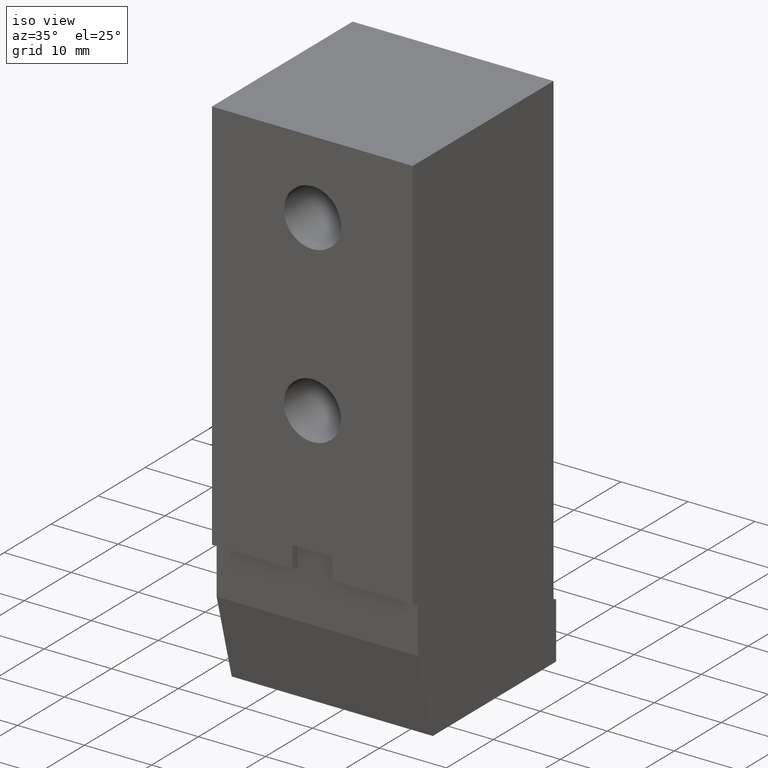
[diagram: clean part render]
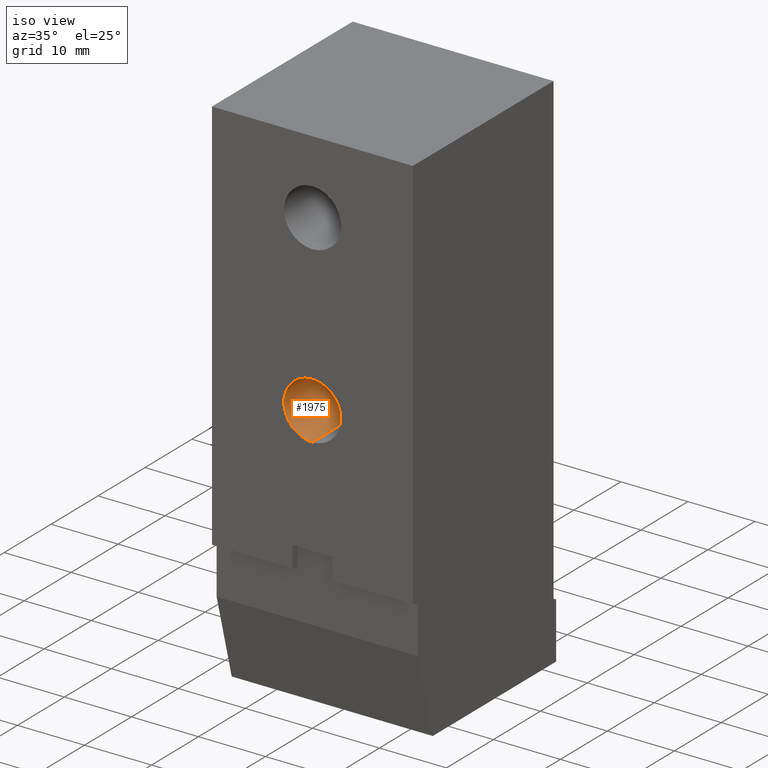
[diagram: same view with one face highlighted and labeled with its STEP entity id]
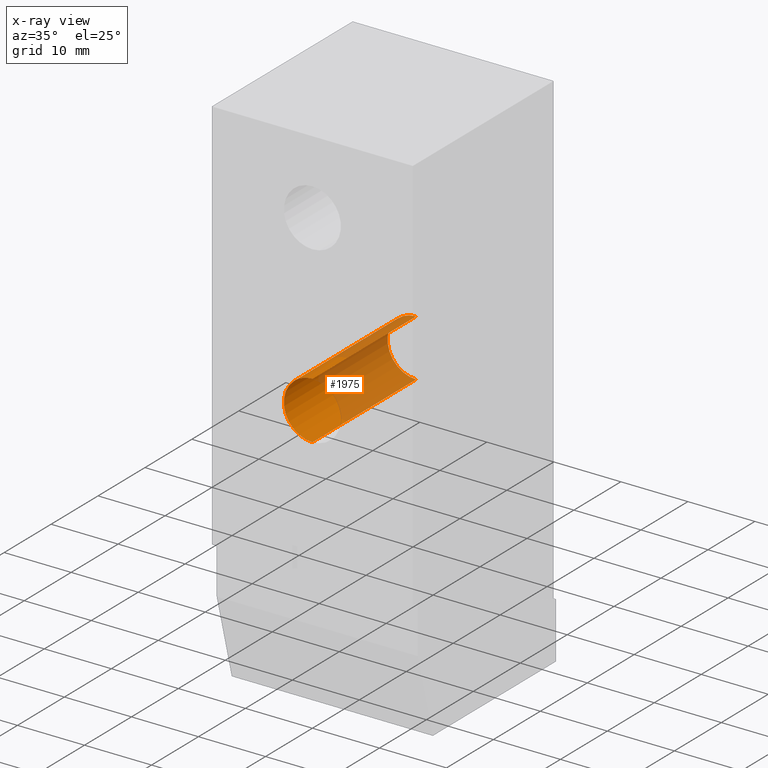
[diagram: x-ray of the same camera — body ghosted, the highlighted face saturated]
A machine part, iso view. The second image highlights one B-rep face of the part: STEP entity #1975.
The next image is the same camera in x-ray: the body ghosted, the highlighted face saturated — about 61% of this face is hidden behind the body in this view.
In plain terms, the highlighted cylindrical surface (edge-blend (fillet) strip) has radius 4.2545 mm, axis along (0, -1, 0).
Its self-contained STEP definition (entity closure, byte-faithful):
#423=CARTESIAN_POINT('',(0.E0,0.E0,-1.457E0));
#424=DIRECTION('',(0.E0,-1.E0,0.E0));
#425=DIRECTION('',(0.E0,0.E0,1.E0));
#426=AXIS2_PLACEMENT_3D('',#423,#424,#425);
#584=CARTESIAN_POINT('',(0.E0,8.7E-1,-1.457E0));
#585=DIRECTION('',(0.E0,-1.E0,0.E0));
#586=DIRECTION('',(0.E0,0.E0,1.E0));
#587=AXIS2_PLACEMENT_3D('',#584,#585,#586);
#620=DIRECTION('',(0.E0,1.E0,0.E0));
#621=VECTOR('',#620,8.7E-1);
#622=CARTESIAN_POINT('',(0.E0,0.E0,-1.6245E0));
#623=LINE('',#622,#621);
#627=DIRECTION('',(0.E0,1.E0,0.E0));
#628=VECTOR('',#627,8.7E-1);
#629=CARTESIAN_POINT('',(0.E0,0.E0,-1.2895E0));
#630=LINE('',#629,#628);
#1400=CARTESIAN_POINT('',(0.E0,0.E0,-1.6245E0));
#1401=CARTESIAN_POINT('',(0.E0,0.E0,-1.2895E0));
#1402=VERTEX_POINT('',#1400);
#1403=VERTEX_POINT('',#1401);
#1424=CARTESIAN_POINT('',(0.E0,8.7E-1,-1.6245E0));
#1425=CARTESIAN_POINT('',(0.E0,8.7E-1,-1.2895E0));
#1426=VERTEX_POINT('',#1424);
#1427=VERTEX_POINT('',#1425);
#1964=CARTESIAN_POINT('',(0.E0,0.E0,-1.457E0));
#1965=DIRECTION('',(0.E0,-1.E0,0.E0));
#1966=DIRECTION('',(0.E0,0.E0,-1.E0));
#1967=AXIS2_PLACEMENT_3D('',#1964,#1965,#1966);
#1968=CYLINDRICAL_SURFACE('',#1967,1.675E-1);
#1969=ORIENTED_EDGE('',*,*,#1893,.T.);
#1970=ORIENTED_EDGE('',*,*,#1959,.F.);
#1971=ORIENTED_EDGE('',*,*,#1782,.F.);
#1972=ORIENTED_EDGE('',*,*,#1956,.T.);
#1973=EDGE_LOOP('',(#1969,#1970,#1971,#1972));
#1974=FACE_OUTER_BOUND('',#1973,.F.);
#1975=ADVANCED_FACE('',(#1974),#1968,.F.);
#427=CIRCLE('',#426,1.675E-1);
#588=CIRCLE('',#587,1.675E-1);
#1782=EDGE_CURVE('',#1403,#1402,#427,.T.);
#1893=EDGE_CURVE('',#1427,#1426,#588,.T.);
#1956=EDGE_CURVE('',#1403,#1427,#630,.T.);
#1959=EDGE_CURVE('',#1402,#1426,#623,.T.);